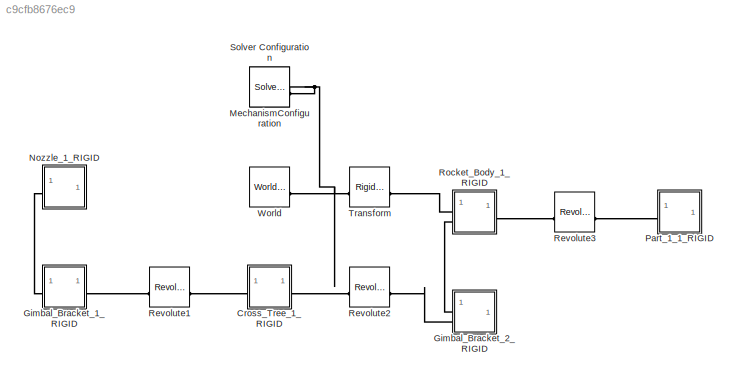
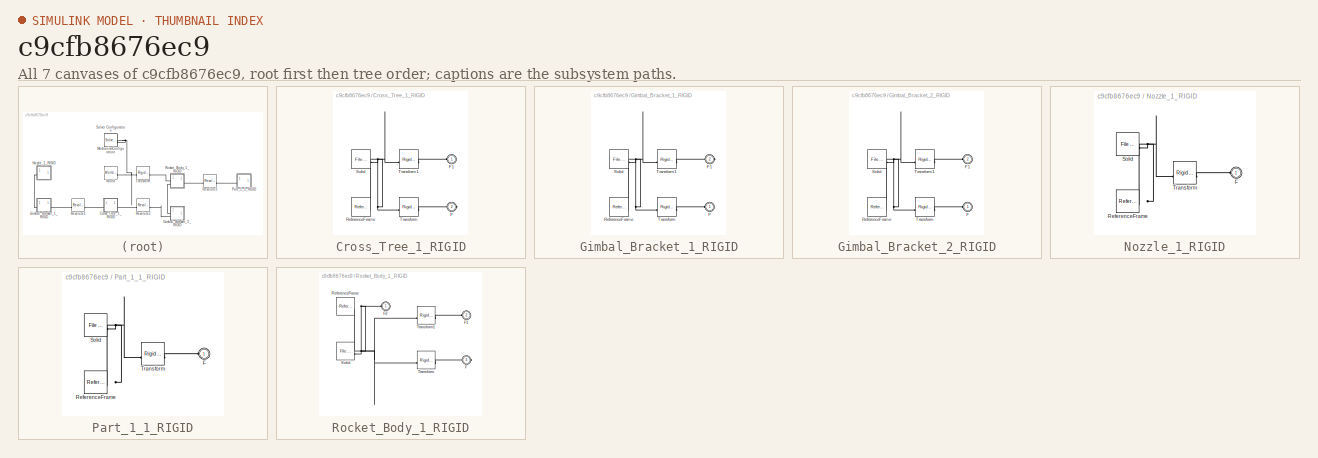
[diagram: thumbnail index - all 7 canvases of the model, root first then tree order]
MODEL slx_c9cfb8676ec9
KIND model
CONFIG AbsTol = auto
CONFIG EnableMultiTasking = off
CONFIG FixedStep = auto
CONFIG MaxStep = auto
CONFIG MinStep = auto
CONFIG RelTol = 1e-3
CONFIG SampleTimeConstraint = Unconstrained
CONFIG SolverName = VariableStepAuto
CONFIG StartTime = 0.0
CONFIG StopTime = 10.0
WORKSPACE source: external: MATLAB File  (data not in archive)
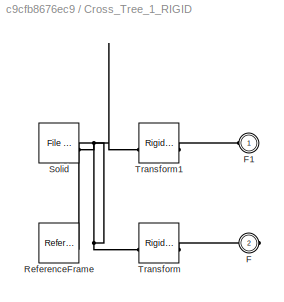
BLOCK [SubSystem] Cross_Tree_1_RIGID
BLOCK [PMIOPort] Cross_Tree_1_RIGID/F
  Port = 2
  Side = Right
BLOCK [PMIOPort] Cross_Tree_1_RIGID/F1
  Side = Left
BLOCK [Reference] Cross_Tree_1_RIGID/ReferenceFrame  REF=sm_lib/Frames and
Transforms/Reference
Frame
  SourceBlock = sm_lib/Frames and\nTransforms/Reference\nFrame
  SourceType = Reference\nFrame
BLOCK [Reference] Cross_Tree_1_RIGID/Solid  REF=sm_lib/Body Elements/File Solid
  SourceBlock = sm_lib/Body Elements/File Solid
  SourceType = File Solid
BLOCK [Reference] Cross_Tree_1_RIGID/Transform  REF=sm_lib/Frames and
Transforms/Rigid
Transform
  SourceBlock = sm_lib/Frames and\nTransforms/Rigid\nTransform
  SourceType = Rigid\nTransform
BLOCK [Reference] Cross_Tree_1_RIGID/Transform1  REF=sm_lib/Frames and
Transforms/Rigid
Transform
  SourceBlock = sm_lib/Frames and\nTransforms/Rigid\nTransform
  SourceType = Rigid\nTransform
BLOCK [SubSystem] Gimbal_Bracket_1_RIGID
BLOCK [PMIOPort] Gimbal_Bracket_1_RIGID/F
  Side = Left
BLOCK [PMIOPort] Gimbal_Bracket_1_RIGID/F1
  Port = 2
  Side = Right
BLOCK [Reference] Gimbal_Bracket_1_RIGID/ReferenceFrame  REF=sm_lib/Frames and
Transforms/Reference
Frame
  SourceBlock = sm_lib/Frames and\nTransforms/Reference\nFrame
  SourceType = Reference\nFrame
BLOCK [Reference] Gimbal_Bracket_1_RIGID/Solid  REF=sm_lib/Body Elements/File Solid
  SourceBlock = sm_lib/Body Elements/File Solid
  SourceType = File Solid
BLOCK [Reference] Gimbal_Bracket_1_RIGID/Transform  REF=sm_lib/Frames and
Transforms/Rigid
Transform
  SourceBlock = sm_lib/Frames and\nTransforms/Rigid\nTransform
  SourceType = Rigid\nTransform
BLOCK [Reference] Gimbal_Bracket_1_RIGID/Transform1  REF=sm_lib/Frames and
Transforms/Rigid
Transform
  SourceBlock = sm_lib/Frames and\nTransforms/Rigid\nTransform
  SourceType = Rigid\nTransform
BLOCK [SubSystem] Gimbal_Bracket_2_RIGID
BLOCK [PMIOPort] Gimbal_Bracket_2_RIGID/F
  Side = Left
BLOCK [PMIOPort] Gimbal_Bracket_2_RIGID/F1
  Port = 2
  Side = Left
BLOCK [Reference] Gimbal_Bracket_2_RIGID/ReferenceFrame  REF=sm_lib/Frames and
Transforms/Reference
Frame
  SourceBlock = sm_lib/Frames and\nTransforms/Reference\nFrame
  SourceType = Reference\nFrame
BLOCK [Reference] Gimbal_Bracket_2_RIGID/Solid  REF=sm_lib/Body Elements/File Solid
  SourceBlock = sm_lib/Body Elements/File Solid
  SourceType = File Solid
BLOCK [Reference] Gimbal_Bracket_2_RIGID/Transform  REF=sm_lib/Frames and
Transforms/Rigid
Transform
  SourceBlock = sm_lib/Frames and\nTransforms/Rigid\nTransform
  SourceType = Rigid\nTransform
BLOCK [Reference] Gimbal_Bracket_2_RIGID/Transform1  REF=sm_lib/Frames and
Transforms/Rigid
Transform
  SourceBlock = sm_lib/Frames and\nTransforms/Rigid\nTransform
  SourceType = Rigid\nTransform
BLOCK [Reference] MechanismConfiguration  REF=sm_lib/Utilities/Mechanism
Configuration
  SourceBlock = sm_lib/Utilities/Mechanism\nConfiguration
  SourceType = Mechanism\nConfiguration
BLOCK [SubSystem] Nozzle_1_RIGID
BLOCK [PMIOPort] Nozzle_1_RIGID/F
  Side = Left
BLOCK [Reference] Nozzle_1_RIGID/ReferenceFrame  REF=sm_lib/Frames and
Transforms/Reference
Frame
  SourceBlock = sm_lib/Frames and\nTransforms/Reference\nFrame
  SourceType = Reference\nFrame
BLOCK [Reference] Nozzle_1_RIGID/Solid  REF=sm_lib/Body Elements/File Solid
  SourceBlock = sm_lib/Body Elements/File Solid
  SourceType = File Solid
BLOCK [Reference] Nozzle_1_RIGID/Transform  REF=sm_lib/Frames and
Transforms/Rigid
Transform
  SourceBlock = sm_lib/Frames and\nTransforms/Rigid\nTransform
  SourceType = Rigid\nTransform
BLOCK [SubSystem] Part_1_1_RIGID
BLOCK [PMIOPort] Part_1_1_RIGID/F
  Side = Left
BLOCK [Reference] Part_1_1_RIGID/ReferenceFrame  REF=sm_lib/Frames and
Transforms/Reference
Frame
  SourceBlock = sm_lib/Frames and\nTransforms/Reference\nFrame
  SourceType = Reference\nFrame
BLOCK [Reference] Part_1_1_RIGID/Solid  REF=sm_lib/Body Elements/File Solid
  SourceBlock = sm_lib/Body Elements/File Solid
  SourceType = File Solid
BLOCK [Reference] Part_1_1_RIGID/Transform  REF=sm_lib/Frames and
Transforms/Rigid
Transform
  SourceBlock = sm_lib/Frames and\nTransforms/Rigid\nTransform
  SourceType = Rigid\nTransform
BLOCK [Reference] Revolute1  REF=sm_lib/Joints/Revolute Joint
  SourceBlock = sm_lib/Joints/Revolute Joint
  SourceType = Revolute Joint
BLOCK [Reference] Revolute2  REF=sm_lib/Joints/Revolute Joint
  SourceBlock = sm_lib/Joints/Revolute Joint
  SourceType = Revolute Joint
BLOCK [Reference] Revolute3  REF=sm_lib/Joints/Revolute Joint
  SourceBlock = sm_lib/Joints/Revolute Joint
  SourceType = Revolute Joint
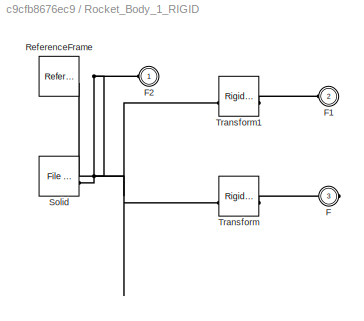
BLOCK [SubSystem] Rocket_Body_1_RIGID
BLOCK [PMIOPort] Rocket_Body_1_RIGID/F
  Port = 3
  Side = Right
BLOCK [PMIOPort] Rocket_Body_1_RIGID/F1
  Port = 2
  Side = Left
BLOCK [PMIOPort] Rocket_Body_1_RIGID/F2
  Side = Left
BLOCK [Reference] Rocket_Body_1_RIGID/ReferenceFrame  REF=sm_lib/Frames and
Transforms/Reference
Frame
  SourceBlock = sm_lib/Frames and\nTransforms/Reference\nFrame
  SourceType = Reference\nFrame
BLOCK [Reference] Rocket_Body_1_RIGID/Solid  REF=sm_lib/Body Elements/File Solid
  SourceBlock = sm_lib/Body Elements/File Solid
  SourceType = File Solid
BLOCK [Reference] Rocket_Body_1_RIGID/Transform  REF=sm_lib/Frames and
Transforms/Rigid
Transform
  SourceBlock = sm_lib/Frames and\nTransforms/Rigid\nTransform
  SourceType = Rigid\nTransform
BLOCK [Reference] Rocket_Body_1_RIGID/Transform1  REF=sm_lib/Frames and
Transforms/Rigid
Transform
  SourceBlock = sm_lib/Frames and\nTransforms/Rigid\nTransform
  SourceType = Rigid\nTransform
BLOCK [Reference] Solver Configuration  REF=nesl_utility/Solver
Configuration
  SourceBlock = nesl_utility/Solver\nConfiguration
  SourceType = Solver\nConfiguration
BLOCK [Reference] Transform  REF=sm_lib/Frames and
Transforms/Rigid
Transform
  SourceBlock = sm_lib/Frames and\nTransforms/Rigid\nTransform
  SourceType = Rigid\nTransform
BLOCK [Reference] World  REF=sm_lib/Frames and
Transforms/World Frame
  SourceBlock = sm_lib/Frames and\nTransforms/World Frame
  SourceType = World Frame
PLINE Cross_Tree_1_RIGID/F1:RConn1 -- Cross_Tree_1_RIGID/Transform1:RConn1
PLINE Cross_Tree_1_RIGID/F:RConn1 -- Cross_Tree_1_RIGID/Transform:RConn1
PNET net1: Cross_Tree_1_RIGID/ReferenceFrame:RConn1 -- Cross_Tree_1_RIGID/Solid:RConn1 -- Cross_Tree_1_RIGID/Transform1:LConn1 -- Cross_Tree_1_RIGID/Transform:LConn1
PLINE Cross_Tree_1_RIGID:LConn1 -- Revolute1:RConn1
PLINE Cross_Tree_1_RIGID:RConn1 -- Revolute2:LConn1
PLINE Gimbal_Bracket_1_RIGID/F1:RConn1 -- Gimbal_Bracket_1_RIGID/Transform1:RConn1
PLINE Gimbal_Bracket_1_RIGID/F:RConn1 -- Gimbal_Bracket_1_RIGID/Transform:RConn1
PNET net2: Gimbal_Bracket_1_RIGID/ReferenceFrame:RConn1 -- Gimbal_Bracket_1_RIGID/Solid:RConn1 -- Gimbal_Bracket_1_RIGID/Transform1:LConn1 -- Gimbal_Bracket_1_RIGID/Transform:LConn1
PLINE Gimbal_Bracket_1_RIGID:LConn1 -- Nozzle_1_RIGID:LConn1
PLINE Gimbal_Bracket_1_RIGID:RConn1 -- Revolute1:LConn1
PLINE Gimbal_Bracket_2_RIGID/F1:RConn1 -- Gimbal_Bracket_2_RIGID/Transform1:RConn1
PLINE Gimbal_Bracket_2_RIGID/F:RConn1 -- Gimbal_Bracket_2_RIGID/Transform:RConn1
PNET net3: Gimbal_Bracket_2_RIGID/ReferenceFrame:RConn1 -- Gimbal_Bracket_2_RIGID/Solid:RConn1 -- Gimbal_Bracket_2_RIGID/Transform1:LConn1 -- Gimbal_Bracket_2_RIGID/Transform:LConn1
PLINE Gimbal_Bracket_2_RIGID:LConn1 -- Rocket_Body_1_RIGID:LConn2
PLINE Gimbal_Bracket_2_RIGID:LConn2 -- Revolute2:RConn1
PNET net4: MechanismConfiguration:RConn1 -- Solver Configuration:RConn1 -- Transform:LConn1 -- World:RConn1
PLINE Nozzle_1_RIGID/F:RConn1 -- Nozzle_1_RIGID/Transform:RConn1
PNET net5: Nozzle_1_RIGID/ReferenceFrame:RConn1 -- Nozzle_1_RIGID/Solid:RConn1 -- Nozzle_1_RIGID/Transform:LConn1
PLINE Part_1_1_RIGID/F:RConn1 -- Part_1_1_RIGID/Transform:RConn1
PNET net6: Part_1_1_RIGID/ReferenceFrame:RConn1 -- Part_1_1_RIGID/Solid:RConn1 -- Part_1_1_RIGID/Transform:LConn1
PLINE Part_1_1_RIGID:LConn1 -- Revolute3:RConn1
PLINE Revolute3:LConn1 -- Rocket_Body_1_RIGID:RConn1
PLINE Rocket_Body_1_RIGID/F1:RConn1 -- Rocket_Body_1_RIGID/Transform1:RConn1
PNET net7: Rocket_Body_1_RIGID/F2:RConn1 -- Rocket_Body_1_RIGID/ReferenceFrame:RConn1 -- Rocket_Body_1_RIGID/Solid:RConn1 -- Rocket_Body_1_RIGID/Transform1:LConn1 -- Rocket_Body_1_RIGID/Transform:LConn1
PLINE Rocket_Body_1_RIGID/F:RConn1 -- Rocket_Body_1_RIGID/Transform:RConn1
PLINE Rocket_Body_1_RIGID:LConn1 -- Transform:RConn1
note: PNET lines group multi-terminal physical nets as a canonical sorted terminal list (undirected conserving connections); 2-terminal nets keep the pairwise PLINE form
